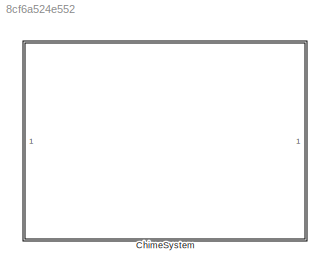
MODEL slx_8cf6a524e552
KIND library
CONFIG AbsTol = auto
CONFIG EnableMultiTasking = off
CONFIG FixedStep = auto
CONFIG MaxStep = auto
CONFIG MinStep = auto
CONFIG RelTol = 1e-3
CONFIG SampleTimeConstraint = Unconstrained
CONFIG SolverName = VariableStepAuto
CONFIG StartTime = 0.0
CONFIG StopTime = 10.0
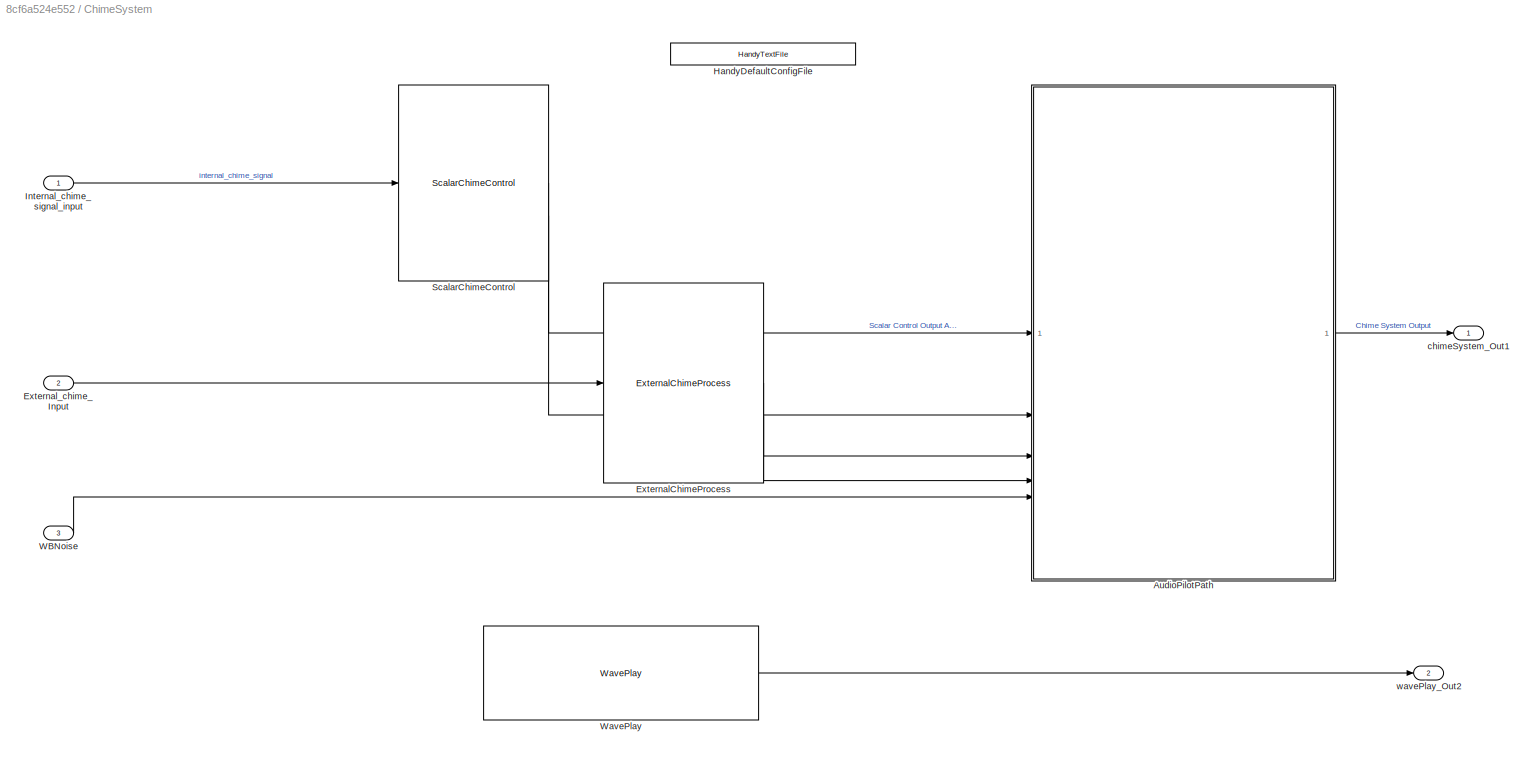
BLOCK [SubSystem] ChimeSystem
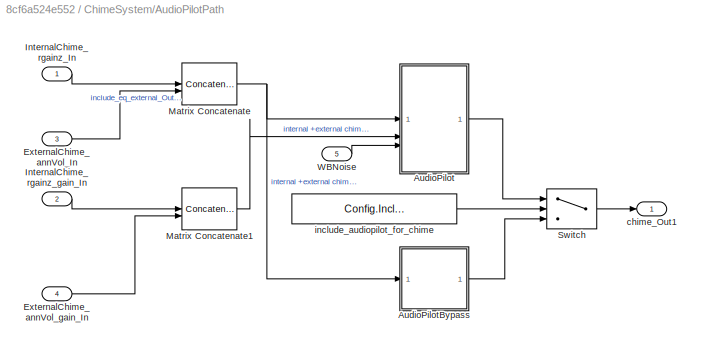
BLOCK [SubSystem] ChimeSystem/AudioPilotPath
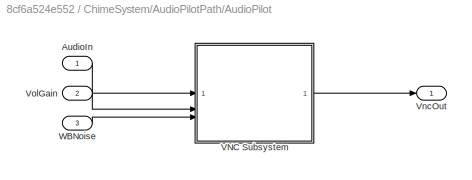
BLOCK [SubSystem] ChimeSystem/AudioPilotPath/AudioPilot
BLOCK [Inport] ChimeSystem/AudioPilotPath/AudioPilot/AudioIn
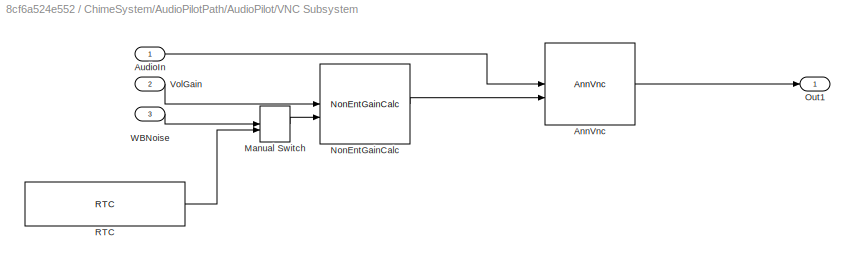
BLOCK [SubSystem] ChimeSystem/AudioPilotPath/AudioPilot/VNC Subsystem
  TreatAsAtomicUnit = on
BLOCK [Reference] ChimeSystem/AudioPilotPath/AudioPilot/VNC Subsystem/AnnVnc  REF=AnnVncBtc/AnnVnc
  SourceBlock = AnnVncBtc/AnnVnc
  SourceProductName = Bose Blocklib
  SourceType = Blocklib AnnVnc
BLOCK [Inport] ChimeSystem/AudioPilotPath/AudioPilot/VNC Subsystem/AudioIn
BLOCK [ManualSwitch] ChimeSystem/AudioPilotPath/AudioPilot/VNC Subsystem/Manual Switch
BLOCK [Reference] ChimeSystem/AudioPilotPath/AudioPilot/VNC Subsystem/NonEntGainCalc  REF=NonEntGainCalcBtc/NonEntGainCalc
  SourceBlock = NonEntGainCalcBtc/NonEntGainCalc
  SourceProductName = Bose Blocklib
  SourceType = Blocklib NonEntGainCalc
BLOCK [Outport] ChimeSystem/AudioPilotPath/AudioPilot/VNC Subsystem/Out1
  VectorParamsAs1DForOutWhenUnconnected = off
BLOCK [Reference] ChimeSystem/AudioPilotPath/AudioPilot/VNC Subsystem/RTC  REF=RTC/RTC
  Commented = on
  SourceBlock = RTC/RTC
  SourceType = Talaria RTC Receive
BLOCK [Inport] ChimeSystem/AudioPilotPath/AudioPilot/VNC Subsystem/VolGain
  Port = 2
BLOCK [Inport] ChimeSystem/AudioPilotPath/AudioPilot/VNC Subsystem/WBNoise
  Port = 3
BLOCK [Outport] ChimeSystem/AudioPilotPath/AudioPilot/VncOut
  VectorParamsAs1DForOutWhenUnconnected = off
BLOCK [Inport] ChimeSystem/AudioPilotPath/AudioPilot/VolGain
  Port = 2
BLOCK [Inport] ChimeSystem/AudioPilotPath/AudioPilot/WBNoise
  Port = 3
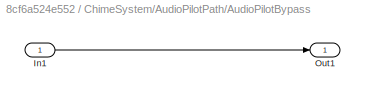
BLOCK [SubSystem] ChimeSystem/AudioPilotPath/AudioPilotBypass
BLOCK [Inport] ChimeSystem/AudioPilotPath/AudioPilotBypass/In1
BLOCK [Outport] ChimeSystem/AudioPilotPath/AudioPilotBypass/Out1
  VectorParamsAs1DForOutWhenUnconnected = off
BLOCK [Inport] ChimeSystem/AudioPilotPath/ExternalChime_annVol_In
  Port = 3
BLOCK [Inport] ChimeSystem/AudioPilotPath/ExternalChime_annVol_gain_In
  Port = 4
BLOCK [Inport] ChimeSystem/AudioPilotPath/InternalChime_rgainz_In
BLOCK [Inport] ChimeSystem/AudioPilotPath/InternalChime_rgainz_gain_In
  Port = 2
BLOCK [Concatenate] ChimeSystem/AudioPilotPath/Matrix Concatenate
  ConcatenateDimension = 2
  Mode = Multidimensional array
BLOCK [Concatenate] ChimeSystem/AudioPilotPath/Matrix Concatenate1
  ConcatenateDimension = 2
  Mode = Multidimensional array
BLOCK [Switch] ChimeSystem/AudioPilotPath/Switch
  Criteria = u2 ~= 0
  InputSameDT = off
  SaturateOnIntegerOverflow = off
BLOCK [Inport] ChimeSystem/AudioPilotPath/WBNoise
  Port = 5
BLOCK [Outport] ChimeSystem/AudioPilotPath/chime_Out1
  VectorParamsAs1DForOutWhenUnconnected = off
BLOCK [Constant] ChimeSystem/AudioPilotPath/include_audiopilot_for_chime
  OutDataTypeStr = single
  Value = Config.IncludeAudioPilotForChime
  VectorParams1D = off
BLOCK [Reference] ChimeSystem/ExternalChimeProcess  REF=ExternalChimeProcessBtc/ExternalChimeProcess
  SourceBlock = ExternalChimeProcessBtc/ExternalChimeProcess
  SourceProductName = Bose Blocklib
  SourceType = Chimes ExternalChimeProcess
BLOCK [Inport] ChimeSystem/External_chime_Input
  Port = 2
BLOCK [Reference] ChimeSystem/HandyDefaultConfigFile  REF=HandyTextFile/HandyTextFile
  SourceBlock = HandyTextFile/HandyTextFile
  SourceType = Talaria Handy Text File
BLOCK [Inport] ChimeSystem/Internal_chime_signal_input
BLOCK [Reference] ChimeSystem/ScalarChimeControl  REF=ScalarChimeControlLibBtc/ScalarChimeControl
  SourceBlock = ScalarChimeControlLibBtc/ScalarChimeControl
  SourceProductName = Bose Blocklib
BLOCK [Inport] ChimeSystem/WBNoise
  Port = 3
BLOCK [Reference] ChimeSystem/WavePlay  REF=WavePlayLibBtc/WavePlay
  SourceBlock = WavePlayLibBtc/WavePlay
  SourceProductName = Bose Blocklib
  SourceType = Chimes WavePlay
BLOCK [Outport] ChimeSystem/chimeSystem_Out1
  VectorParamsAs1DForOutWhenUnconnected = off
BLOCK [Outport] ChimeSystem/wavePlay_Out2
  Port = 2
  VectorParamsAs1DForOutWhenUnconnected = off
LINE ChimeSystem/AudioPilotPath/AudioPilot/AudioIn:1 -> ChimeSystem/AudioPilotPath/AudioPilot/VNC Subsystem:1
LINE ChimeSystem/AudioPilotPath/AudioPilot/VNC Subsystem/AnnVnc:1 -> ChimeSystem/AudioPilotPath/AudioPilot/VNC Subsystem/Out1:1
LINE ChimeSystem/AudioPilotPath/AudioPilot/VNC Subsystem/AudioIn:1 -> ChimeSystem/AudioPilotPath/AudioPilot/VNC Subsystem/AnnVnc:1
LINE ChimeSystem/AudioPilotPath/AudioPilot/VNC Subsystem/Manual Switch:1 -> ChimeSystem/AudioPilotPath/AudioPilot/VNC Subsystem/NonEntGainCalc:2
LINE ChimeSystem/AudioPilotPath/AudioPilot/VNC Subsystem/NonEntGainCalc:1 -> ChimeSystem/AudioPilotPath/AudioPilot/VNC Subsystem/AnnVnc:2
LINE ChimeSystem/AudioPilotPath/AudioPilot/VNC Subsystem/RTC:1 -> ChimeSystem/AudioPilotPath/AudioPilot/VNC Subsystem/Manual Switch:2
LINE ChimeSystem/AudioPilotPath/AudioPilot/VNC Subsystem/VolGain:1 -> ChimeSystem/AudioPilotPath/AudioPilot/VNC Subsystem/NonEntGainCalc:1
LINE ChimeSystem/AudioPilotPath/AudioPilot/VNC Subsystem/WBNoise:1 -> ChimeSystem/AudioPilotPath/AudioPilot/VNC Subsystem/Manual Switch:1
LINE ChimeSystem/AudioPilotPath/AudioPilot/VNC Subsystem:1 -> ChimeSystem/AudioPilotPath/AudioPilot/VncOut:1
LINE ChimeSystem/AudioPilotPath/AudioPilot/VolGain:1 -> ChimeSystem/AudioPilotPath/AudioPilot/VNC Subsystem:2
LINE ChimeSystem/AudioPilotPath/AudioPilot/WBNoise:1 -> ChimeSystem/AudioPilotPath/AudioPilot/VNC Subsystem:3
LINE ChimeSystem/AudioPilotPath/AudioPilot:1 -> ChimeSystem/AudioPilotPath/Switch:1
LINE ChimeSystem/AudioPilotPath/AudioPilotBypass/In1:1 -> ChimeSystem/AudioPilotPath/AudioPilotBypass/Out1:1
LINE ChimeSystem/AudioPilotPath/AudioPilotBypass:1 -> ChimeSystem/AudioPilotPath/Switch:3
LINE ChimeSystem/AudioPilotPath/ExternalChime_annVol_In:1 -> ChimeSystem/AudioPilotPath/Matrix Concatenate:2
LINE ChimeSystem/AudioPilotPath/ExternalChime_annVol_gain_In:1 -> ChimeSystem/AudioPilotPath/Matrix Concatenate1:2
LINE ChimeSystem/AudioPilotPath/InternalChime_rgainz_In:1 -> ChimeSystem/AudioPilotPath/Matrix Concatenate:1
LINE ChimeSystem/AudioPilotPath/InternalChime_rgainz_gain_In:1 -> ChimeSystem/AudioPilotPath/Matrix Concatenate1:1
LINE ChimeSystem/AudioPilotPath/Matrix Concatenate1:1 -> ChimeSystem/AudioPilotPath/AudioPilot:2
NET ChimeSystem/AudioPilotPath/Matrix Concatenate:1 -> ChimeSystem/AudioPilotPath/AudioPilot:1, ChimeSystem/AudioPilotPath/AudioPilotBypass:1
LINE ChimeSystem/AudioPilotPath/Switch:1 -> ChimeSystem/AudioPilotPath/chime_Out1:1
LINE ChimeSystem/AudioPilotPath/WBNoise:1 -> ChimeSystem/AudioPilotPath/AudioPilot:3
LINE ChimeSystem/AudioPilotPath/include_audiopilot_for_chime:1 -> ChimeSystem/AudioPilotPath/Switch:2
LINE ChimeSystem/AudioPilotPath:1 -> ChimeSystem/chimeSystem_Out1:1
LINE ChimeSystem/ExternalChimeProcess:1 -> ChimeSystem/AudioPilotPath:3
LINE ChimeSystem/ExternalChimeProcess:2 -> ChimeSystem/AudioPilotPath:4
LINE ChimeSystem/External_chime_Input:1 -> ChimeSystem/ExternalChimeProcess:1
LINE ChimeSystem/Internal_chime_signal_input:1 -> ChimeSystem/ScalarChimeControl:1
LINE ChimeSystem/ScalarChimeControl:1 -> ChimeSystem/AudioPilotPath:1
LINE ChimeSystem/ScalarChimeControl:2 -> ChimeSystem/AudioPilotPath:2
LINE ChimeSystem/WBNoise:1 -> ChimeSystem/AudioPilotPath:5
LINE ChimeSystem/WavePlay:1 -> ChimeSystem/wavePlay_Out2:1
note: NET lines group one-source signal fan-out (src -> all destinations, sorted); 1:1 wires keep LINE
